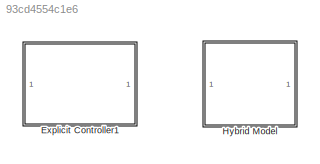
MODEL slx_93cd4554c1e6
KIND library
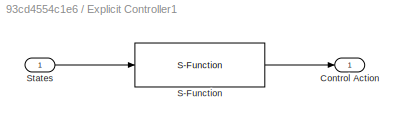
BLOCK [SubSystem] Explicit Controller1
  FunctionWithSeparateData = off
  MaskHideContents = off
  MinAlgLoopOccurrences = off
  Opaque = off
  Ports = [1, 1]
  PropExecContextOutsideSubsystem = off
  RTWSystemCode = Auto
  RequestExecContextInheritance = off
BLOCK [Outport] Explicit Controller1/Control Action
  IconDisplay = Port number
BLOCK [S-Function] Explicit Controller1/S-Function
  EnableBusSupport = off
  FunctionName = mpt_getInput_sfunc
  Ports = [1, 1]
BLOCK [Inport] Explicit Controller1/States
  IconDisplay = Port number
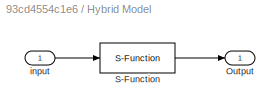
BLOCK [SubSystem] Hybrid Model
  FunctionWithSeparateData = off
  MaskHideContents = off
  MinAlgLoopOccurrences = off
  Opaque = off
  Ports = [1, 1]
  PropExecContextOutsideSubsystem = off
  RTWSystemCode = Auto
  RequestExecContextInheritance = off
BLOCK [Outport] Hybrid Model/Output
  IconDisplay = Port number
BLOCK [S-Function] Hybrid Model/S-Function
  EnableBusSupport = off
  FunctionName = SimModelMLD
  Parameters = modelReal,x0,TsReal
  Ports = [1, 1]
BLOCK [Inport] Hybrid Model/input
  IconDisplay = Port number
LINE Hybrid Model/S-Function:1 -> Hybrid Model/Output:1
LINE Hybrid Model/input:1 -> Hybrid Model/S-Function:1
